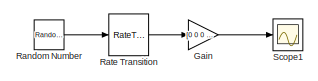
[diagram: root canvas - part 1/2, top center region]
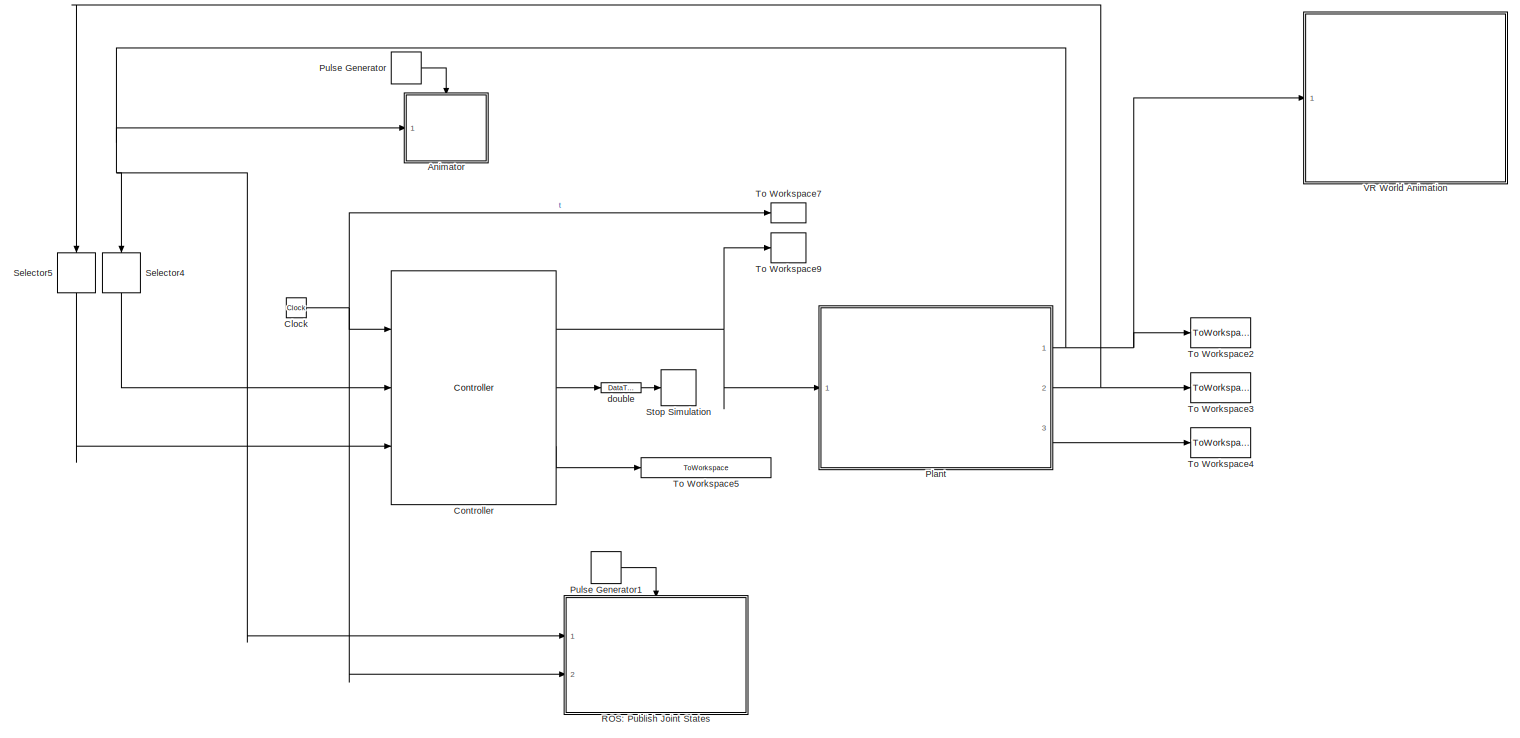
[diagram: root canvas - part 2/2, most of the canvas]
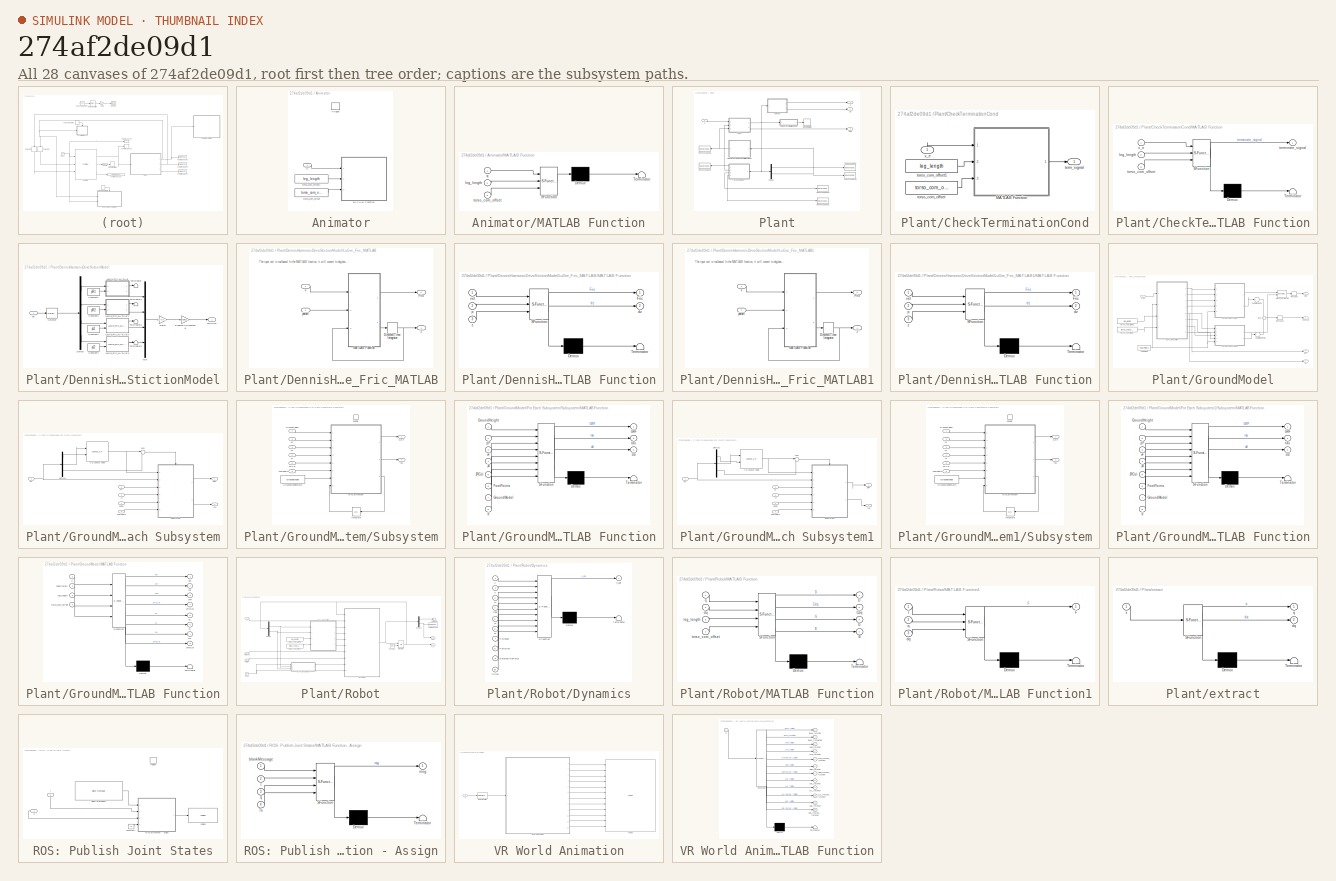
[diagram: thumbnail index - all 28 canvases of the model, root first then tree order]
MODEL slx_274af2de09d1
KIND model
CONFIG AbsTol = auto
CONFIG FixedStep = 0.0005
CONFIG MaxStep = auto
CONFIG MinStep = auto
CONFIG RelTol = 1e-3
CONFIG SampleTimeConstraint = Unconstrained
CONFIG Solver = ode1
CONFIG SolverMode = MultiTasking
CONFIG SolverName = ode1
CONFIG StartTime = 0.0
CONFIG StopFcn = structifySimData\nConstructLog_Sim
CONFIG StopTime = 20
BLOCK [SubSystem] Animator
  Commented = on
  Ports = [1, 0, 0, 1]
  RequestExecContextInheritance = off
  Variant = off
BLOCK [SubSystem] Animator/MATLAB Function
  ErrorFcn = Stateflow.Translate.translate
  PermitHierarchicalResolution = ExplicitOnly
  Ports = [3]
  RequestExecContextInheritance = off
  SFBlockType = MATLAB Function
  TreatAsAtomicUnit = on
  Variant = off
BLOCK [Demux] Animator/MATLAB Function/ Demux 
  Outputs = 1
  Ports = [1, 1]
BLOCK [S-Function] Animator/MATLAB Function/ SFunction 
  EnableBusSupport = on
  FunctionName = sf_sfun
  PortCounts = [3 1]
  Ports = [3, 1]
  SFunctionDeploymentMode = off
  Tag = Stateflow S-Function Controller_Sim 8
BLOCK [Terminator] Animator/MATLAB Function/ Terminator 
BLOCK [Inport] Animator/MATLAB Function/leg_length
  IconDisplay = Port number
  Port = 2
BLOCK [Inport] Animator/MATLAB Function/q
  IconDisplay = Port number
BLOCK [Inport] Animator/MATLAB Function/torso_com_offset
  IconDisplay = Port number
  Port = 3
BLOCK [TriggerPort] Animator/Trigger
  PortDimensions = 1
  Ports = []
  StatesWhenEnabling = held
  VariantControl = Variant
BLOCK [Inport] Animator/q
  IconDisplay = Port number
BLOCK [Constant] Animator/torso_com_offset
  Value = torso_com_offset
BLOCK [Constant] Animator/torso_com_offset1
  Value = leg_length
BLOCK [Clock] Clock
BLOCK [Reference] Controller  REF=ControllerLibrary/Controller
  Ports = [3, 3]
  SourceBlock = ControllerLibrary/Controller
  SourceType = SubSystem
BLOCK [Gain] Gain
  Gain = [0 0 0 0 0 0 0 0 0 1 0 0 1]
  OutDataTypeStr = Inherit: Inherit via internal rule
  ParamDataTypeStr = Inherit: Inherit via internal rule
  SaturateOnIntegerOverflow = off
BLOCK [SubSystem] Plant
  Ports = [1, 3]
  RequestExecContextInheritance = off
  Variant = off
BLOCK [SubSystem] Plant/CheckTerminationCond
  Ports = [1, 1]
  RequestExecContextInheritance = off
  Variant = off
BLOCK [SubSystem] Plant/CheckTerminationCond/MATLAB Function
  ErrorFcn = Stateflow.Translate.translate
  PermitHierarchicalResolution = ExplicitOnly
  Ports = [3, 1]
  RequestExecContextInheritance = off
  SFBlockType = MATLAB Function
  TreatAsAtomicUnit = on
  Variant = off
BLOCK [Demux] Plant/CheckTerminationCond/MATLAB Function/ Demux 
  Outputs = 1
  Ports = [1, 1]
BLOCK [S-Function] Plant/CheckTerminationCond/MATLAB Function/ SFunction 
  EnableBusSupport = on
  FunctionName = sf_sfun
  PortCounts = [3 2]
  Ports = [3, 2]
  SFunctionDeploymentMode = off
  Tag = Stateflow S-Function Controller_Sim 11
BLOCK [Terminator] Plant/CheckTerminationCond/MATLAB Function/ Terminator 
BLOCK [Inport] Plant/CheckTerminationCond/MATLAB Function/leg_length
  IconDisplay = Port number
  Port = 2
BLOCK [Outport] Plant/CheckTerminationCond/MATLAB Function/terminate_signal
  IconDisplay = Port number
BLOCK [Inport] Plant/CheckTerminationCond/MATLAB Function/torso_com_offset
  IconDisplay = Port number
  Port = 3
BLOCK [Inport] Plant/CheckTerminationCond/MATLAB Function/x_e
  IconDisplay = Port number
BLOCK [Outport] Plant/CheckTerminationCond/term_signal
  IconDisplay = Port number
BLOCK [Constant] Plant/CheckTerminationCond/torso_com_offset
  Value = torso_com_offset
BLOCK [Constant] Plant/CheckTerminationCond/torso_com_offset1
  Value = leg_length
BLOCK [Inport] Plant/CheckTerminationCond/x_e
  IconDisplay = Port number
BLOCK [Demux] Plant/Demux
  DisplayOption = bar
  Outputs = [16 16]
  Ports = [1, 2]
BLOCK [SubSystem] Plant/DennisHarmonicDriveStictionModel
  Ports = [1, 1]
  RequestExecContextInheritance = off
  Variant = off
BLOCK [Constant] Plant/DennisHarmonicDriveStictionModel/Constant1
  Value = pR1
BLOCK [Constant] Plant/DennisHarmonicDriveStictionModel/Constant2
  Value = pR2
BLOCK [Constant] Plant/DennisHarmonicDriveStictionModel/Constant3
  Value = pL1
BLOCK [Constant] Plant/DennisHarmonicDriveStictionModel/Constant4
  Value = pL2
BLOCK [Demux] Plant/DennisHarmonicDriveStictionModel/Demux
  DisplayOption = bar
  Ports = [1, 4]
BLOCK [Gain] Plant/DennisHarmonicDriveStictionModel/EnableStictionModel
  Gain = EnableStictionModel
  OutDataTypeStr = Inherit: Inherit via internal rule
  ParamDataTypeStr = Inherit: Inherit via internal rule
  SaturateOnIntegerOverflow = off
BLOCK [Outport] Plant/DennisHarmonicDriveStictionModel/Fstiction
  IconDisplay = Port number
BLOCK [Gain] Plant/DennisHarmonicDriveStictionModel/Gain1
  Gain = [1 0 0 0; 0 1 0 0; 0 0 0 0; 0 0 1 0; 0 0 0 1; 0 0 0 0]
  Multiplication = Matrix(K*u)
  OutDataTypeStr = Inherit: Inherit via internal rule
  ParamDataTypeStr = Inherit: Inherit via internal rule
  SaturateOnIntegerOverflow = off
BLOCK [SubSystem] Plant/DennisHarmonicDriveStictionModel/LuGre_Fric_MATLAB
  AncestorBlock = Friction_Compensator_Lib/LuGre_Fric_MATLAB
  Ports = [2, 2]
  RequestExecContextInheritance = off
  Variant = off
BLOCK [DiscreteIntegrator] Plant/DennisHarmonicDriveStictionModel/LuGre_Fric_MATLAB/Discrete-Time Integrator
  ICPrevOutput = DiscIntNeverNeededParam
  ICPrevScaledInput = DiscIntNeverNeededParam
  InitialConditionSetting = State (most efficient)
  Ports = [1, 1]
  SampleTime = -1
BLOCK [Outport] Plant/DennisHarmonicDriveStictionModel/LuGre_Fric_MATLAB/Fric
  IconDisplay = Port number
  Port = 2
BLOCK [SubSystem] Plant/DennisHarmonicDriveStictionModel/LuGre_Fric_MATLAB/MATLAB Function
  ErrorFcn = Stateflow.Translate.translate
  PermitHierarchicalResolution = ExplicitOnly
  Ports = [3, 2]
  RequestExecContextInheritance = off
  SFBlockType = MATLAB Function
  TreatAsAtomicUnit = on
  Variant = off
BLOCK [Demux] Plant/DennisHarmonicDriveStictionModel/LuGre_Fric_MATLAB/MATLAB Function/ Demux 
  Outputs = 1
  Ports = [1, 1]
BLOCK [S-Function] Plant/DennisHarmonicDriveStictionModel/LuGre_Fric_MATLAB/MATLAB Function/ SFunction 
  EnableBusSupport = on
  FunctionName = sf_sfun
  PortCounts = [3 3]
  Ports = [3, 3]
  SFunctionDeploymentMode = off
  Tag = Stateflow S-Function Controller_Sim 14
BLOCK [Terminator] Plant/DennisHarmonicDriveStictionModel/LuGre_Fric_MATLAB/MATLAB Function/ Terminator 
BLOCK [Outport] Plant/DennisHarmonicDriveStictionModel/LuGre_Fric_MATLAB/MATLAB Function/Fric
  IconDisplay = Port number
BLOCK [Outport] Plant/DennisHarmonicDriveStictionModel/LuGre_Fric_MATLAB/MATLAB Function/dz
  IconDisplay = Port number
  Port = 2
BLOCK [Inport] Plant/DennisHarmonicDriveStictionModel/LuGre_Fric_MATLAB/MATLAB Function/p
  IconDisplay = Port number
  Port = 2
BLOCK [Inport] Plant/DennisHarmonicDriveStictionModel/LuGre_Fric_MATLAB/MATLAB Function/vel
  IconDisplay = Port number
BLOCK [Inport] Plant/DennisHarmonicDriveStictionModel/LuGre_Fric_MATLAB/MATLAB Function/z
  IconDisplay = Port number
  Port = 3
BLOCK [Inport] Plant/DennisHarmonicDriveStictionModel/LuGre_Fric_MATLAB/param
  IconDisplay = Port number
  Port = 2
BLOCK [Inport] Plant/DennisHarmonicDriveStictionModel/LuGre_Fric_MATLAB/v
  IconDisplay = Port number
BLOCK [Outport] Plant/DennisHarmonicDriveStictionModel/LuGre_Fric_MATLAB/z
  IconDisplay = Port number
BLOCK [SubSystem] Plant/DennisHarmonicDriveStictionModel/LuGre_Fric_MATLAB1
  AncestorBlock = Friction_Compensator_Lib/LuGre_Fric_MATLAB
  Ports = [2, 2]
  RequestExecContextInheritance = off
  Variant = off
BLOCK [DiscreteIntegrator] Plant/DennisHarmonicDriveStictionModel/LuGre_Fric_MATLAB1/Discrete-Time Integrator
  ICPrevOutput = DiscIntNeverNeededParam
  ICPrevScaledInput = DiscIntNeverNeededParam
  InitialConditionSetting = State (most efficient)
  Ports = [1, 1]
  SampleTime = -1
BLOCK [Outport] Plant/DennisHarmonicDriveStictionModel/LuGre_Fric_MATLAB1/Fric
  IconDisplay = Port number
  Port = 2
BLOCK [SubSystem] Plant/DennisHarmonicDriveStictionModel/LuGre_Fric_MATLAB1/MATLAB Function
  ErrorFcn = Stateflow.Translate.translate
  PermitHierarchicalResolution = ExplicitOnly
  Ports = [3, 2]
  RequestExecContextInheritance = off
  SFBlockType = MATLAB Function
  TreatAsAtomicUnit = on
  Variant = off
BLOCK [Demux] Plant/DennisHarmonicDriveStictionModel/LuGre_Fric_MATLAB1/MATLAB Function/ Demux 
  Outputs = 1
  Ports = [1, 1]
BLOCK [S-Function] Plant/DennisHarmonicDriveStictionModel/LuGre_Fric_MATLAB1/MATLAB Function/ SFunction 
  EnableBusSupport = on
  FunctionName = sf_sfun
  PortCounts = [3 3]
  Ports = [3, 3]
  SFunctionDeploymentMode = off
  Tag = Stateflow S-Function Controller_Sim 15
BLOCK [Terminator] Plant/DennisHarmonicDriveStictionModel/LuGre_Fric_MATLAB1/MATLAB Function/ Terminator 
BLOCK [Outport] Plant/DennisHarmonicDriveStictionModel/LuGre_Fric_MATLAB1/MATLAB Function/Fric
  IconDisplay = Port number
BLOCK [Outport] Plant/DennisHarmonicDriveStictionModel/LuGre_Fric_MATLAB1/MATLAB Function/dz
  IconDisplay = Port number
  Port = 2
BLOCK [Inport] Plant/DennisHarmonicDriveStictionModel/LuGre_Fric_MATLAB1/MATLAB Function/p
  IconDisplay = Port number
  Port = 2
BLOCK [Inport] Plant/DennisHarmonicDriveStictionModel/LuGre_Fric_MATLAB1/MATLAB Function/vel
  IconDisplay = Port number
BLOCK [Inport] Plant/DennisHarmonicDriveStictionModel/LuGre_Fric_MATLAB1/MATLAB Function/z
  IconDisplay = Port number
  Port = 3
BLOCK [Inport] Plant/DennisHarmonicDriveStictionModel/LuGre_Fric_MATLAB1/param
  IconDisplay = Port number
  Port = 2
BLOCK [Inport] Plant/DennisHarmonicDriveStictionModel/LuGre_Fric_MATLAB1/v
  IconDisplay = Port number
BLOCK [Outport] Plant/DennisHarmonicDriveStictionModel/LuGre_Fric_MATLAB1/z
  IconDisplay = Port number
BLOCK [Reference] Plant/DennisHarmonicDriveStictionModel/LuGre_Fric_MATLAB2  REF=Friction_Compensator_Lib/LuGre_Fric_MATLAB
  Ports = [2, 2]
  SourceBlock = Friction_Compensator_Lib/LuGre_Fric_MATLAB
  SourceType = SubSystem
BLOCK [Reference] Plant/DennisHarmonicDriveStictionModel/LuGre_Fric_MATLAB3  REF=Friction_Compensator_Lib/LuGre_Fric_MATLAB
  Ports = [2, 2]
  SourceBlock = Friction_Compensator_Lib/LuGre_Fric_MATLAB
  SourceType = SubSystem
BLOCK [Mux] Plant/DennisHarmonicDriveStictionModel/Mux
  DisplayOption = bar
  Ports = [4, 1]
BLOCK [Selector] Plant/DennisHarmonicDriveStictionModel/Selector
  IndexOptions = Index vector (dialog)
  Indices = [11 12 14 15]
  InputPortWidth = 16
  OutputSizes = 1
  Ports = [1, 1]
BLOCK [Terminator] Plant/DennisHarmonicDriveStictionModel/Terminator
BLOCK [Terminator] Plant/DennisHarmonicDriveStictionModel/Terminator1
BLOCK [Terminator] Plant/DennisHarmonicDriveStictionModel/Terminator2
BLOCK [Terminator] Plant/DennisHarmonicDriveStictionModel/Terminator3
BLOCK [Inport] Plant/DennisHarmonicDriveStictionModel/dq
  IconDisplay = Port number
BLOCK [SubSystem] Plant/GroundModel
  Ports = [1, 4]
  RequestExecContextInheritance = off
  Variant = off
BLOCK [Outport] Plant/GroundModel/FGround
  IconDisplay = Port number
  Port = 2
BLOCK [Constant] Plant/GroundModel/FootPoints
  Value = FootPoints
BLOCK [SubSystem] Plant/GroundModel/For Each Subsystem
  Ports = [5, 2]
  RequestExecContextInheritance = off
  TreatAsAtomicUnit = on
  Variant = off
BLOCK [Lookup_n-D] Plant/GroundModel/For Each Subsystem/2-D Lookup Table
  BreakpointsForDimension1 = xLine
  BreakpointsForDimension2 = yLine
  InternalRulePriority = Speed
  Ports = [2, 1]
  RndMeth = Simplest
  Table = Z
BLOCK [Demux] Plant/GroundModel/For Each Subsystem/Demux1
  DisplayOption = bar
  Outputs = 3
  Ports = [1, 3]
BLOCK [Inport] Plant/GroundModel/For Each Subsystem/FootPoints
  IconDisplay = Port number
  Port = 5
BLOCK [Outport] Plant/GroundModel/For Each Subsystem/GRF
  IconDisplay = Port number
BLOCK [Inport] Plant/GroundModel/For Each Subsystem/J4
  IconDisplay = Port number
  Port = 3
BLOCK [Inport] Plant/GroundModel/For Each Subsystem/JRCol
  IconDisplay = Port number
  Port = 4
BLOCK [SubSystem] Plant/GroundModel/For Each Subsystem/Subsystem
  Ports = [6, 2, 1]
  RequestExecContextInheritance = off
  Variant = off
BLOCK [EnablePort] Plant/GroundModel/For Each Subsystem/Subsystem/Enable
  Ports = []
  StatesWhenEnabling = reset
BLOCK [Inport] Plant/GroundModel/For Each Subsystem/Subsystem/FootPoints
  IconDisplay = Port number
  Port = 6
BLOCK [Outport] Plant/GroundModel/For Each Subsystem/Subsystem/GRF
  IconDisplay = Port number
  InitialOutput = [0;0;0]
  OutputWhenDisabled = reset
BLOCK [Inport] Plant/GroundModel/For Each Subsystem/Subsystem/GroundHeight
  IconDisplay = Port number
BLOCK [Constant] Plant/GroundModel/For Each Subsystem/Subsystem/GroundModelParams
  OutDataTypeStr = Bus: GroundModelParamsBus
  Value = GroundModel
BLOCK [Integrator] Plant/GroundModel/For Each Subsystem/Subsystem/Integrator
  InitialCondition = [0; 0]
  Ports = [1, 1]
BLOCK [Inport] Plant/GroundModel/For Each Subsystem/Subsystem/J4
  IconDisplay = Port number
  Port = 4
BLOCK [Inport] Plant/GroundModel/For Each Subsystem/Subsystem/JRCol
  IconDisplay = Port number
  Port = 5
BLOCK [SubSystem] Plant/GroundModel/For Each Subsystem/Subsystem/MATLAB Function
  ErrorFcn = Stateflow.Translate.translate
  PermitHierarchicalResolution = ExplicitOnly
  Ports = [8, 3]
  RequestExecContextInheritance = off
  SFBlockType = MATLAB Function
  TreatAsAtomicUnit = on
  Variant = off
BLOCK [Demux] Plant/GroundModel/For Each Subsystem/Subsystem/MATLAB Function/ Demux 
  Outputs = 1
  Ports = [1, 1]
BLOCK [S-Function] Plant/GroundModel/For Each Subsystem/Subsystem/MATLAB Function/ SFunction 
  EnableBusSupport = on
  FunctionName = sf_sfun
  PortCounts = [8 4]
  Ports = [8, 4]
  SFunctionDeploymentMode = off
  Tag = Stateflow S-Function Controller_Sim 3
BLOCK [Terminator] Plant/GroundModel/For Each Subsystem/Subsystem/MATLAB Function/ Terminator 
BLOCK [Inport] Plant/GroundModel/For Each Subsystem/Subsystem/MATLAB Function/FootPoints
  IconDisplay = Port number
  Port = 6
BLOCK [Outport] Plant/GroundModel/For Each Subsystem/Subsystem/MATLAB Function/GRF
  IconDisplay = Port number
BLOCK [Inport] Plant/GroundModel/For Each Subsystem/Subsystem/MATLAB Function/GroundHeight
  IconDisplay = Port number
BLOCK [Inport] Plant/GroundModel/For Each Subsystem/Subsystem/MATLAB Function/GroundModel
  IconDisplay = Port number
  Port = 7
BLOCK [Inport] Plant/GroundModel/For Each Subsystem/Subsystem/MATLAB Function/J4
  IconDisplay = Port number
  Port = 4
BLOCK [Inport] Plant/GroundModel/For Each Subsystem/Subsystem/MATLAB Function/JRCol
  IconDisplay = Port number
  Port = 5
BLOCK [Inport] Plant/GroundModel/For Each Subsystem/Subsystem/MATLAB Function/d
  IconDisplay = Port number
  Port = 8
BLOCK [Outport] Plant/GroundModel/For Each Subsystem/Subsystem/MATLAB Function/dd
  IconDisplay = Port number
  Port = 3
BLOCK [Inport] Plant/GroundModel/For Each Subsystem/Subsystem/MATLAB Function/pF
  IconDisplay = Port number
  Port = 2
BLOCK [Outport] Plant/GroundModel/For Each Subsystem/Subsystem/MATLAB Function/tau
  IconDisplay = Port number
  Port = 2
BLOCK [Inport] Plant/GroundModel/For Each Subsystem/Subsystem/MATLAB Function/vF
  IconDisplay = Port number
  Port = 3
BLOCK [Inport] Plant/GroundModel/For Each Subsystem/Subsystem/pF
  IconDisplay = Port number
  Port = 2
BLOCK [Outport] Plant/GroundModel/For Each Subsystem/Subsystem/tau
  IconDisplay = Port number
  InitialOutput = zeros(16,1)
  OutputWhenDisabled = reset
  Port = 2
BLOCK [Inport] Plant/GroundModel/For Each Subsystem/Subsystem/vF
  IconDisplay = Port number
  Port = 3
BLOCK [Sum] Plant/GroundModel/For Each Subsystem/Sum
  IconShape = round
  InputSameDT = off
  Inputs = |+-
  OutDataTypeStr = Inherit: Inherit via internal rule
  Ports = [2, 1]
  SaturateOnIntegerOverflow = off
BLOCK [Inport] Plant/GroundModel/For Each Subsystem/pF
  IconDisplay = Port number
BLOCK [Outport] Plant/GroundModel/For Each Subsystem/tau
  IconDisplay = Port number
  Port = 2
BLOCK [Inport] Plant/GroundModel/For Each Subsystem/vF
  IconDisplay = Port number
  Port = 2
BLOCK [SubSystem] Plant/GroundModel/For Each Subsystem1
  Ports = [5, 2]
  RequestExecContextInheritance = off
  TreatAsAtomicUnit = on
  Variant = off
BLOCK [Lookup_n-D] Plant/GroundModel/For Each Subsystem1/2-D Lookup Table
  BreakpointsForDimension1 = xLine
  BreakpointsForDimension2 = yLine
  InternalRulePriority = Speed
  Ports = [2, 1]
  RndMeth = Simplest
  Table = Z
BLOCK [Demux] Plant/GroundModel/For Each Subsystem1/Demux1
  DisplayOption = bar
  Outputs = 3
  Ports = [1, 3]
BLOCK [Inport] Plant/GroundModel/For Each Subsystem1/FootPoints
  IconDisplay = Port number
  Port = 5
BLOCK [Outport] Plant/GroundModel/For Each Subsystem1/GRF
  IconDisplay = Port number
BLOCK [Inport] Plant/GroundModel/For Each Subsystem1/J4
  IconDisplay = Port number
  Port = 3
BLOCK [Inport] Plant/GroundModel/For Each Subsystem1/JRCol
  IconDisplay = Port number
  Port = 4
BLOCK [SubSystem] Plant/GroundModel/For Each Subsystem1/Subsystem
  Ports = [6, 2, 1]
  RequestExecContextInheritance = off
  Variant = off
BLOCK [EnablePort] Plant/GroundModel/For Each Subsystem1/Subsystem/Enable
  Ports = []
  StatesWhenEnabling = reset
BLOCK [Inport] Plant/GroundModel/For Each Subsystem1/Subsystem/FootPoints
  IconDisplay = Port number
  Port = 6
BLOCK [Outport] Plant/GroundModel/For Each Subsystem1/Subsystem/GRF
  IconDisplay = Port number
  InitialOutput = [0;0;0]
  OutputWhenDisabled = reset
BLOCK [Inport] Plant/GroundModel/For Each Subsystem1/Subsystem/GroundHeight
  IconDisplay = Port number
BLOCK [Constant] Plant/GroundModel/For Each Subsystem1/Subsystem/GroundModelParams
  OutDataTypeStr = Bus: GroundModelParamsBus
  Value = GroundModel
BLOCK [Integrator] Plant/GroundModel/For Each Subsystem1/Subsystem/Integrator
  InitialCondition = [0; 0]
  Ports = [1, 1]
BLOCK [Inport] Plant/GroundModel/For Each Subsystem1/Subsystem/J4
  IconDisplay = Port number
  Port = 4
BLOCK [Inport] Plant/GroundModel/For Each Subsystem1/Subsystem/JRCol
  IconDisplay = Port number
  Port = 5
BLOCK [SubSystem] Plant/GroundModel/For Each Subsystem1/Subsystem/MATLAB Function
  ErrorFcn = Stateflow.Translate.translate
  PermitHierarchicalResolution = ExplicitOnly
  Ports = [8, 3]
  RequestExecContextInheritance = off
  SFBlockType = MATLAB Function
  TreatAsAtomicUnit = on
  Variant = off
BLOCK [Demux] Plant/GroundModel/For Each Subsystem1/Subsystem/MATLAB Function/ Demux 
  Outputs = 1
  Ports = [1, 1]
BLOCK [S-Function] Plant/GroundModel/For Each Subsystem1/Subsystem/MATLAB Function/ SFunction 
  EnableBusSupport = on
  FunctionName = sf_sfun
  PortCounts = [8 4]
  Ports = [8, 4]
  SFunctionDeploymentMode = off
  Tag = Stateflow S-Function Controller_Sim 1
BLOCK [Terminator] Plant/GroundModel/For Each Subsystem1/Subsystem/MATLAB Function/ Terminator 
BLOCK [Inport] Plant/GroundModel/For Each Subsystem1/Subsystem/MATLAB Function/FootPoints
  IconDisplay = Port number
  Port = 6
BLOCK [Outport] Plant/GroundModel/For Each Subsystem1/Subsystem/MATLAB Function/GRF
  IconDisplay = Port number
BLOCK [Inport] Plant/GroundModel/For Each Subsystem1/Subsystem/MATLAB Function/GroundHeight
  IconDisplay = Port number
BLOCK [Inport] Plant/GroundModel/For Each Subsystem1/Subsystem/MATLAB Function/GroundModel
  IconDisplay = Port number
  Port = 7
BLOCK [Inport] Plant/GroundModel/For Each Subsystem1/Subsystem/MATLAB Function/J4
  IconDisplay = Port number
  Port = 4
BLOCK [Inport] Plant/GroundModel/For Each Subsystem1/Subsystem/MATLAB Function/JRCol
  IconDisplay = Port number
  Port = 5
BLOCK [Inport] Plant/GroundModel/For Each Subsystem1/Subsystem/MATLAB Function/d
  IconDisplay = Port number
  Port = 8
BLOCK [Outport] Plant/GroundModel/For Each Subsystem1/Subsystem/MATLAB Function/dd
  IconDisplay = Port number
  Port = 3
BLOCK [Inport] Plant/GroundModel/For Each Subsystem1/Subsystem/MATLAB Function/pF
  IconDisplay = Port number
  Port = 2
BLOCK [Outport] Plant/GroundModel/For Each Subsystem1/Subsystem/MATLAB Function/tau
  IconDisplay = Port number
  Port = 2
BLOCK [Inport] Plant/GroundModel/For Each Subsystem1/Subsystem/MATLAB Function/vF
  IconDisplay = Port number
  Port = 3
BLOCK [Inport] Plant/GroundModel/For Each Subsystem1/Subsystem/pF
  IconDisplay = Port number
  Port = 2
BLOCK [Outport] Plant/GroundModel/For Each Subsystem1/Subsystem/tau
  IconDisplay = Port number
  InitialOutput = zeros(16,1)
  OutputWhenDisabled = reset
  Port = 2
BLOCK [Inport] Plant/GroundModel/For Each Subsystem1/Subsystem/vF
  IconDisplay = Port number
  Port = 3
BLOCK [Sum] Plant/GroundModel/For Each Subsystem1/Sum
  IconShape = round
  InputSameDT = off
  Inputs = |+-
  OutDataTypeStr = Inherit: Inherit via internal rule
  Ports = [2, 1]
  SaturateOnIntegerOverflow = off
BLOCK [Inport] Plant/GroundModel/For Each Subsystem1/pF
  IconDisplay = Port number
BLOCK [Outport] Plant/GroundModel/For Each Subsystem1/tau
  IconDisplay = Port number
  Port = 2
BLOCK [Inport] Plant/GroundModel/For Each Subsystem1/vF
  IconDisplay = Port number
  Port = 2
BLOCK [Outport] Plant/GroundModel/GRF
  IconDisplay = Port number
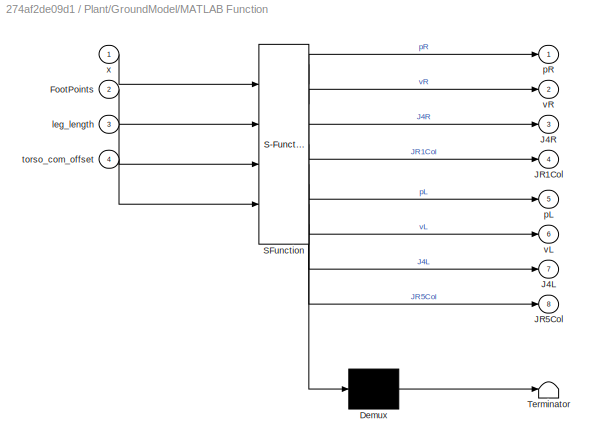
BLOCK [SubSystem] Plant/GroundModel/MATLAB Function
  ErrorFcn = Stateflow.Translate.translate
  PermitHierarchicalResolution = ExplicitOnly
  Ports = [4, 8]
  RequestExecContextInheritance = off
  SFBlockType = MATLAB Function
  TreatAsAtomicUnit = on
  Variant = off
BLOCK [Demux] Plant/GroundModel/MATLAB Function/ Demux 
  Outputs = 1
  Ports = [1, 1]
BLOCK [S-Function] Plant/GroundModel/MATLAB Function/ SFunction 
  EnableBusSupport = on
  FunctionName = sf_sfun
  PortCounts = [4 9]
  Ports = [4, 9]
  SFunctionDeploymentMode = off
  Tag = Stateflow S-Function Controller_Sim 9
BLOCK [Terminator] Plant/GroundModel/MATLAB Function/ Terminator 
BLOCK [Inport] Plant/GroundModel/MATLAB Function/FootPoints
  IconDisplay = Port number
  Port = 2
BLOCK [Outport] Plant/GroundModel/MATLAB Function/J4L
  IconDisplay = Port number
  Port = 7
BLOCK [Outport] Plant/GroundModel/MATLAB Function/J4R
  IconDisplay = Port number
  Port = 3
BLOCK [Outport] Plant/GroundModel/MATLAB Function/JR1Col
  IconDisplay = Port number
  Port = 4
BLOCK [Outport] Plant/GroundModel/MATLAB Function/JR5Col
  IconDisplay = Port number
  Port = 8
BLOCK [Inport] Plant/GroundModel/MATLAB Function/leg_length
  IconDisplay = Port number
  Port = 3
BLOCK [Outport] Plant/GroundModel/MATLAB Function/pL
  IconDisplay = Port number
  Port = 5
BLOCK [Outport] Plant/GroundModel/MATLAB Function/pR
  IconDisplay = Port number
BLOCK [Inport] Plant/GroundModel/MATLAB Function/torso_com_offset
  IconDisplay = Port number
  Port = 4
BLOCK [Outport] Plant/GroundModel/MATLAB Function/vL
  IconDisplay = Port number
  Port = 6
BLOCK [Outport] Plant/GroundModel/MATLAB Function/vR
  IconDisplay = Port number
  Port = 2
BLOCK [Inport] Plant/GroundModel/MATLAB Function/x
  IconDisplay = Port number
BLOCK [Concatenate] Plant/GroundModel/Matrix Concatenate
  Mode = Multidimensional array
  Ports = [2, 1]
BLOCK [Reshape] Plant/GroundModel/Reshape
  Ports = [1, 1]
BLOCK [Reshape] Plant/GroundModel/Reshape1
  Ports = [1, 1]
BLOCK [Sum] Plant/GroundModel/Sum
  IconShape = round
  InputSameDT = off
  Inputs = +|+
  OutDataTypeStr = Inherit: Inherit via internal rule
  Ports = [2, 1]
  SaturateOnIntegerOverflow = off
BLOCK [Sum] Plant/GroundModel/Sum of Elements
  CollapseDim = 2
  CollapseMode = Specified dimension
  Commented = through
  InputSameDT = off
  Inputs = +
  OutDataTypeStr = Inherit: Inherit via internal rule
  Ports = [1, 1]
  SaturateOnIntegerOverflow = off
BLOCK [Sum] Plant/GroundModel/Sum of Elements1
  CollapseDim = 2
  CollapseMode = Specified dimension
  Commented = through
  InputSameDT = off
  Inputs = +
  OutDataTypeStr = Inherit: Inherit via internal rule
  Ports = [1, 1]
  SaturateOnIntegerOverflow = off
BLOCK [Outport] Plant/GroundModel/pL
  IconDisplay = Port number
  Port = 4
BLOCK [Outport] Plant/GroundModel/pR
  IconDisplay = Port number
  Port = 3
BLOCK [Constant] Plant/GroundModel/torso_com_offset
  Value = torso_com_offset
BLOCK [Constant] Plant/GroundModel/torso_com_offset1
  Value = leg_length
BLOCK [Inport] Plant/GroundModel/x_e
  IconDisplay = Port number
BLOCK [SubSystem] Plant/Robot
  Ports = [3, 2]
  RequestExecContextInheritance = off
  Variant = off
BLOCK [Clock] Plant/Robot/Clock
BLOCK [Constant] Plant/Robot/Constant
  Value = xinit
BLOCK [Demux] Plant/Robot/Demux
  DisplayOption = bar
  Outputs = [16 16]
  Ports = [1, 2]
BLOCK [Demux] Plant/Robot/Demux1
  DisplayOption = bar
  Outputs = [16 16]
  Ports = [1, 2]
BLOCK [SubSystem] Plant/Robot/Dynamics
  ErrorFcn = Stateflow.Translate.translate
  PermitHierarchicalResolution = ExplicitOnly
  Ports = [10, 1]
  RequestExecContextInheritance = off
  SFBlockType = MATLAB Function
  TreatAsAtomicUnit = on
  Variant = off
BLOCK [Demux] Plant/Robot/Dynamics/ Demux 
  Outputs = 1
  Ports = [1, 1]
BLOCK [S-Function] Plant/Robot/Dynamics/ SFunction 
  EnableBusSupport = on
  FunctionName = sf_sfun
  Parameters = spring_k,spring_zeta
  PortCounts = [10 2]
  Ports = [10, 2]
  SFunctionDeploymentMode = off
  Tag = Stateflow S-Function Controller_Sim 2
BLOCK [Terminator] Plant/Robot/Dynamics/ Terminator 
BLOCK [Inport] Plant/Robot/Dynamics/B
  IconDisplay = Port number
  Port = 6
BLOCK [Inport] Plant/Robot/Dynamics/Cdq
  IconDisplay = Port number
  Port = 4
BLOCK [Inport] Plant/Robot/Dynamics/D
  IconDisplay = Port number
  Port = 3
BLOCK [Inport] Plant/Robot/Dynamics/ExternalHipForce
  IconDisplay = Port number
  Port = 9
BLOCK [Inport] Plant/Robot/Dynamics/FGround
  IconDisplay = Port number
  Port = 7
BLOCK [Inport] Plant/Robot/Dynamics/Fstiction
  IconDisplay = Port number
  Port = 8
BLOCK [Inport] Plant/Robot/Dynamics/G
  IconDisplay = Port number
  Port = 5
BLOCK [Inport] Plant/Robot/Dynamics/Ttime
  IconDisplay = Port number
  Port = 10
BLOCK [Inport] Plant/Robot/Dynamics/u
  IconDisplay = Port number
  Port = 2
BLOCK [Inport] Plant/Robot/Dynamics/x
  IconDisplay = Port number
BLOCK [Outport] Plant/Robot/Dynamics/x_dot
  IconDisplay = Port number
BLOCK [Inport] Plant/Robot/FGround
  IconDisplay = Port number
  Port = 2
BLOCK [Inport] Plant/Robot/FStiction
  IconDisplay = Port number
  Port = 3
BLOCK [Integrator] Plant/Robot/Integrator
  InitialCondition = str2num(get(gd.edit1,'string'))
  InitialConditionSource = external
  Ports = [2, 1]
BLOCK [SubSystem] Plant/Robot/MATLAB Function
  ErrorFcn = Stateflow.Translate.translate
  PermitHierarchicalResolution = ExplicitOnly
  Ports = [4, 4]
  RequestExecContextInheritance = off
  SFBlockType = MATLAB Function
  TreatAsAtomicUnit = on
  Variant = off
BLOCK [Demux] Plant/Robot/MATLAB Function/ Demux 
  Outputs = 1
  Ports = [1, 1]
BLOCK [S-Function] Plant/Robot/MATLAB Function/ SFunction 
  EnableBusSupport = on
  FunctionName = sf_sfun
  PortCounts = [4 5]
  Ports = [4, 5]
  SFunctionDeploymentMode = off
  Tag = Stateflow S-Function Controller_Sim 5
BLOCK [Terminator] Plant/Robot/MATLAB Function/ Terminator 
BLOCK [Outport] Plant/Robot/MATLAB Function/B
  IconDisplay = Port number
  Port = 4
BLOCK [Outport] Plant/Robot/MATLAB Function/Cdq
  IconDisplay = Port number
  Port = 2
BLOCK [Outport] Plant/Robot/MATLAB Function/D
  IconDisplay = Port number
BLOCK [Outport] Plant/Robot/MATLAB Function/G
  IconDisplay = Port number
  Port = 3
BLOCK [Inport] Plant/Robot/MATLAB Function/dq
  IconDisplay = Port number
  Port = 2
BLOCK [Inport] Plant/Robot/MATLAB Function/leg_length
  IconDisplay = Port number
  Port = 3
BLOCK [Inport] Plant/Robot/MATLAB Function/q
  IconDisplay = Port number
BLOCK [Inport] Plant/Robot/MATLAB Function/torso_com_offset
  IconDisplay = Port number
  Port = 4
BLOCK [SubSystem] Plant/Robot/MATLAB Function1
  ErrorFcn = Stateflow.Translate.translate
  PermitHierarchicalResolution = ExplicitOnly
  Ports = [3, 1]
  RequestExecContextInheritance = off
  SFBlockType = MATLAB Function
  TreatAsAtomicUnit = on
  Variant = off
BLOCK [Demux] Plant/Robot/MATLAB Function1/ Demux 
  Outputs = 1
  Ports = [1, 1]
BLOCK [S-Function] Plant/Robot/MATLAB Function1/ SFunction 
  EnableBusSupport = on
  FunctionName = sf_sfun
  PortCounts = [3 2]
  Ports = [3, 2]
  SFunctionDeploymentMode = off
  Tag = Stateflow S-Function Controller_Sim 6
BLOCK [Terminator] Plant/Robot/MATLAB Function1/ Terminator 
BLOCK [Outport] Plant/Robot/MATLAB Function1/F
  IconDisplay = Port number
BLOCK [Inport] Plant/Robot/MATLAB Function1/dq
  IconDisplay = Port number
  Port = 3
BLOCK [Inport] Plant/Robot/MATLAB Function1/q
  IconDisplay = Port number
  Port = 2
BLOCK [Inport] Plant/Robot/MATLAB Function1/t
  IconDisplay = Port number
BLOCK [Terminator] Plant/Robot/Terminator
BLOCK [ToWorkspace] Plant/Robot/To Workspace
  MaxDataPoints = inf
  Ports = [1]
  SampleTime = -1
  VariableName = ddq_out
BLOCK [Outport] Plant/Robot/ddq
  IconDisplay = Port number
  Port = 2
BLOCK [Constant] Plant/Robot/torso_com_offset
  Value = torso_com_offset
BLOCK [Constant] Plant/Robot/torso_com_offset1
  Value = leg_length
BLOCK [Inport] Plant/Robot/u
  IconDisplay = Port number
BLOCK [Outport] Plant/Robot/x_e
  IconDisplay = Port number
BLOCK [Stop] Plant/Stop Simulation
BLOCK [ToWorkspace] Plant/To Workspace
  MaxDataPoints = inf
  Ports = [1]
  SampleTime = -1
  VariableName = q_out
BLOCK [ToWorkspace] Plant/To Workspace1
  MaxDataPoints = inf
  Ports = [1]
  SampleTime = -1
  VariableName = dq_out
BLOCK [ToWorkspace] Plant/To Workspace2
  MaxDataPoints = inf
  Ports = [1]
  SampleTime = -1
  VariableName = pR_out
BLOCK [ToWorkspace] Plant/To Workspace3
  MaxDataPoints = inf
  Ports = [1]
  SampleTime = -1
  VariableName = pL_out
BLOCK [ToWorkspace] Plant/To Workspace4
  MaxDataPoints = inf
  Ports = [1]
  SampleTime = -1
  VariableName = grf_out
BLOCK [ToWorkspace] Plant/To Workspace5
  MaxDataPoints = inf
  Ports = [1]
  SampleTime = -1
  VariableName = Fstiction
BLOCK [Outport] Plant/ddq
  IconDisplay = Port number
  Port = 3
BLOCK [Outport] Plant/dq
  IconDisplay = Port number
  Port = 2
BLOCK [SubSystem] Plant/extract
  ErrorFcn = Stateflow.Translate.translate
  PermitHierarchicalResolution = ExplicitOnly
  Ports = [1, 2]
  RequestExecContextInheritance = off
  SFBlockType = MATLAB Function
  TreatAsAtomicUnit = on
  Variant = off
BLOCK [Demux] Plant/extract/ Demux 
  Outputs = 1
  Ports = [1, 1]
BLOCK [S-Function] Plant/extract/ SFunction 
  EnableBusSupport = on
  FunctionName = sf_sfun
  PortCounts = [1 3]
  Ports = [1, 3]
  SFunctionDeploymentMode = off
  Tag = Stateflow S-Function Controller_Sim 4
BLOCK [Terminator] Plant/extract/ Terminator 
BLOCK [Outport] Plant/extract/dq
  IconDisplay = Port number
  Port = 2
BLOCK [Outport] Plant/extract/q
  IconDisplay = Port number
BLOCK [Inport] Plant/extract/x
  IconDisplay = Port number
BLOCK [Outport] Plant/q
  IconDisplay = Port number
BLOCK [Inport] Plant/u
  IconDisplay = Port number
BLOCK [DiscretePulseGenerator] Pulse Generator
  Commented = on
  Period = .01
  Ports = [0, 1]
  PulseType = Time based
  PulseWidth = 5
BLOCK [DiscretePulseGenerator] Pulse Generator1
  Commented = on
  Period = .01
  Ports = [0, 1]
  PulseType = Time based
  PulseWidth = 5
BLOCK [SubSystem] ROS: Publish Joint States
  Commented = on
  Ports = [2, 0, 0, 1]
  RequestExecContextInheritance = off
  Variant = off
BLOCK [Reference] ROS: Publish Joint States/Blank Message1  REF=robotlib/Blank Message
  Ports = [0, 1]
  SourceBlock = robotlib/Blank Message
  SourceLibraryInfo = This block requires Robotics System Toolbox
  SourceType = ROS Blank Message
BLOCK [Constant] ROS: Publish Joint States/Constant7
  Value = Ts
BLOCK [SubSystem] ROS: Publish Joint States/MATLAB Function - Assign
  ErrorFcn = Stateflow.Translate.translate
  PermitHierarchicalResolution = ExplicitOnly
  Ports = [4, 1]
  RequestExecContextInheritance = off
  SFBlockType = MATLAB Function
  TreatAsAtomicUnit = on
  Variant = off
BLOCK [Demux] ROS: Publish Joint States/MATLAB Function - Assign/ Demux 
  Outputs = 1
  Ports = [1, 1]
BLOCK [S-Function] ROS: Publish Joint States/MATLAB Function - Assign/ SFunction 
  EnableBusSupport = on
  FunctionName = sf_sfun
  PortCounts = [4 2]
  Ports = [4, 2]
  SFunctionDeploymentMode = off
  Tag = Stateflow S-Function Controller_Sim 17
BLOCK [Terminator] ROS: Publish Joint States/MATLAB Function - Assign/ Terminator 
BLOCK [Inport] ROS: Publish Joint States/MATLAB Function - Assign/Ts
  IconDisplay = Port number
  Port = 4
BLOCK [Inport] ROS: Publish Joint States/MATLAB Function - Assign/blankMessage
  IconDisplay = Port number
BLOCK [Outport] ROS: Publish Joint States/MATLAB Function - Assign/msg
  IconDisplay = Port number
BLOCK [Inport] ROS: Publish Joint States/MATLAB Function - Assign/q
  IconDisplay = Port number
  Port = 3
BLOCK [Inport] ROS: Publish Joint States/MATLAB Function - Assign/t
  IconDisplay = Port number
  Port = 2
BLOCK [Reference] ROS: Publish Joint States/Publish  REF=robotlib/Publish
  Ports = [1]
  SourceBlock = robotlib/Publish
  SourceLibraryInfo = This block requires Robotics System Toolbox
  SourceType = ROS Publish
BLOCK [TriggerPort] ROS: Publish Joint States/Trigger
  PortDimensions = 1
  Ports = []
  StatesWhenEnabling = held
  VariantControl = Variant
BLOCK [Inport] ROS: Publish Joint States/q
  IconDisplay = Port number
BLOCK [Inport] ROS: Publish Joint States/t
  IconDisplay = Port number
  Port = 2
BLOCK [RandomNumber] Random Number
  SampleTime = Ts*100
  Variance = Ts*300
BLOCK [RateTransition] Rate Transition
  OutPortSampleTime = Ts
BLOCK [Scope] Scope1
  Ports = [1]
  ScopeSpecificationString = C++SS(StrPVP('Location','[188, 365, 512, 604]'),StrPVP('Open','off'),MxPVP('AxesTitles',24,'struct(''axes1'',''%<SignalLabel>'')'),StrPVP('ShowLegends','off'),StrPVP('ScrollMode','off'),StrPVP('LimitDataPoints','on'),StrPVP('DataFormat','Array'),StrPVP('Decimation','1'),StrPVP('BlockParamSampleInput','off'),StrPVP('SaveName','ScopeData1'))
BLOCK [Selector] Selector4
  IndexOptions = Index vector (dialog)
  Indices = [4,5,6,7,8,9,10,11,12,13,14,15,16]
  InputPortWidth = 16
  OutputSizes = 1
  Ports = [1, 1]
BLOCK [Selector] Selector5
  IndexOptions = Index vector (dialog)
  Indices = [4,5,6,7,8,9,10,11,12,13,14,15,16]
  InputPortWidth = 16
  OutputSizes = 1
  Ports = [1, 1]
BLOCK [Stop] Stop Simulation
BLOCK [ToWorkspace] To Workspace2
  MaxDataPoints = inf
  Ports = [1]
  SampleTime = -1
  VariableName = q
BLOCK [ToWorkspace] To Workspace3
  MaxDataPoints = inf
  Ports = [1]
  SampleTime = -1
  VariableName = dq
BLOCK [ToWorkspace] To Workspace4
  MaxDataPoints = inf
  Ports = [1]
  SampleTime = -1
  VariableName = ddq
BLOCK [ToWorkspace] To Workspace5
  MaxDataPoints = inf
  Ports = [1]
  SampleTime = -1
  VariableName = DataVec
BLOCK [ToWorkspace] To Workspace7
  MaxDataPoints = inf
  Ports = [1]
  SampleTime = -1
  VariableName = t
BLOCK [ToWorkspace] To Workspace9
  MaxDataPoints = inf
  Ports = [1]
  SampleTime = -1
  VariableName = u
BLOCK [SubSystem] VR World Animation
  Ports = [1]
  RequestExecContextInheritance = off
  Variant = off
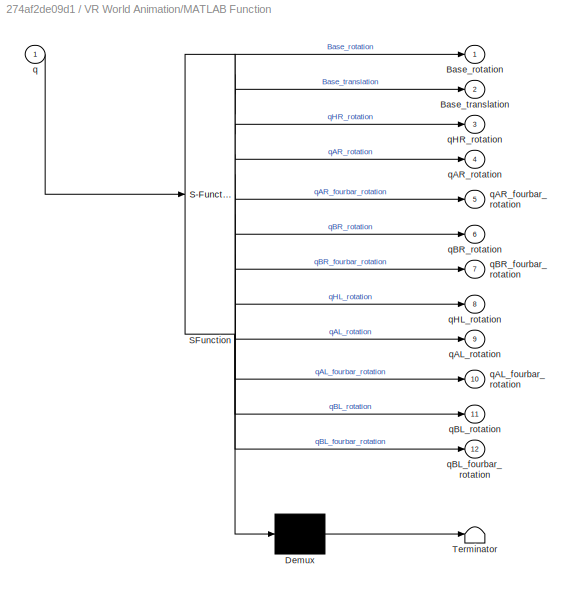
BLOCK [SubSystem] VR World Animation/MATLAB Function
  ErrorFcn = Stateflow.Translate.translate
  PermitHierarchicalResolution = ExplicitOnly
  Ports = [1, 12]
  RequestExecContextInheritance = off
  SFBlockType = MATLAB Function
  TreatAsAtomicUnit = on
  Variant = off
BLOCK [Demux] VR World Animation/MATLAB Function/ Demux 
  Outputs = 1
  Ports = [1, 1]
BLOCK [S-Function] VR World Animation/MATLAB Function/ SFunction 
  EnableBusSupport = on
  FunctionName = sf_sfun
  PortCounts = [1 13]
  Ports = [1, 13]
  SFunctionDeploymentMode = off
  Tag = Stateflow S-Function Controller_Sim 19
BLOCK [Terminator] VR World Animation/MATLAB Function/ Terminator 
BLOCK [Outport] VR World Animation/MATLAB Function/Base_rotation
  IconDisplay = Port number
BLOCK [Outport] VR World Animation/MATLAB Function/Base_translation
  IconDisplay = Port number
  Port = 2
BLOCK [Inport] VR World Animation/MATLAB Function/q
  IconDisplay = Port number
BLOCK [Outport] VR World Animation/MATLAB Function/qAL_fourbar_rotation
  IconDisplay = Port number
  Port = 10
BLOCK [Outport] VR World Animation/MATLAB Function/qAL_rotation
  IconDisplay = Port number
  Port = 9
BLOCK [Outport] VR World Animation/MATLAB Function/qAR_fourbar_rotation
  IconDisplay = Port number
  Port = 5
BLOCK [Outport] VR World Animation/MATLAB Function/qAR_rotation
  IconDisplay = Port number
  Port = 4
BLOCK [Outport] VR World Animation/MATLAB Function/qBL_fourbar_rotation
  IconDisplay = Port number
  Port = 12
BLOCK [Outport] VR World Animation/MATLAB Function/qBL_rotation
  IconDisplay = Port number
  Port = 11
BLOCK [Outport] VR World Animation/MATLAB Function/qBR_fourbar_rotation
  IconDisplay = Port number
  Port = 7
BLOCK [Outport] VR World Animation/MATLAB Function/qBR_rotation
  IconDisplay = Port number
  Port = 6
BLOCK [Outport] VR World Animation/MATLAB Function/qHL_rotation
  IconDisplay = Port number
  Port = 8
BLOCK [Outport] VR World Animation/MATLAB Function/qHR_rotation
  IconDisplay = Port number
  Port = 3
BLOCK [RateTransition] VR World Animation/Rate Transition
BLOCK [Reference] VR World Animation/VR Sink  REF=vrlib/VR Sink
  InstantiateOnLoad = on
  Ports = [12]
  SourceBlock = vrlib/VR Sink
  SourceType = Virtual Reality Sink
BLOCK [Inport] VR World Animation/q
  IconDisplay = Port number
BLOCK [DataTypeConversion] double
  OutDataTypeStr = double
  RndMeth = Floor
  SaturateOnIntegerOverflow = off
ANNOTATION Plant/DennisHarmonicDriveStictionModel/LuGre_Fric_MATLAB: The input unit is rad-based. In the MATLAB function, it will convert to deg-based value
ANNOTATION Plant/DennisHarmonicDriveStictionModel/LuGre_Fric_MATLAB1: The input unit is rad-based. In the MATLAB function, it will convert to deg-based value
LINE Animator/q:1 -> Animator/MATLAB Function:1
LINE Animator/torso_com_offset1:1 -> Animator/MATLAB Function:2
LINE Animator/torso_com_offset:1 -> Animator/MATLAB Function:3
NET Clock:1 -> Controller:1, ROS: Publish Joint States:2, To Workspace7:1
NET Controller:1 -> Plant:1, To Workspace9:1
LINE Controller:2 -> double:1
LINE Controller:3 -> To Workspace5:1
LINE Gain:1 -> Scope1:1
LINE Plant/CheckTerminationCond/MATLAB Function:1 -> Plant/CheckTerminationCond/term_signal:1
LINE Plant/CheckTerminationCond/torso_com_offset1:1 -> Plant/CheckTerminationCond/MATLAB Function:2
LINE Plant/CheckTerminationCond/torso_com_offset:1 -> Plant/CheckTerminationCond/MATLAB Function:3
LINE Plant/CheckTerminationCond/x_e:1 -> Plant/CheckTerminationCond/MATLAB Function:1
LINE Plant/CheckTerminationCond:1 -> Plant/Stop Simulation:1
LINE Plant/Demux:1 -> Plant/To Workspace:1
NET Plant/Demux:2 -> Plant/DennisHarmonicDriveStictionModel:1, Plant/To Workspace1:1
LINE Plant/DennisHarmonicDriveStictionModel/Constant1:1 -> Plant/DennisHarmonicDriveStictionModel/LuGre_Fric_MATLAB:2
LINE Plant/DennisHarmonicDriveStictionModel/Constant2:1 -> Plant/DennisHarmonicDriveStictionModel/LuGre_Fric_MATLAB1:2
LINE Plant/DennisHarmonicDriveStictionModel/Constant3:1 -> Plant/DennisHarmonicDriveStictionModel/LuGre_Fric_MATLAB2:2
LINE Plant/DennisHarmonicDriveStictionModel/Constant4:1 -> Plant/DennisHarmonicDriveStictionModel/LuGre_Fric_MATLAB3:2
LINE Plant/DennisHarmonicDriveStictionModel/Demux:1 -> Plant/DennisHarmonicDriveStictionModel/LuGre_Fric_MATLAB:1
LINE Plant/DennisHarmonicDriveStictionModel/Demux:2 -> Plant/DennisHarmonicDriveStictionModel/LuGre_Fric_MATLAB1:1
LINE Plant/DennisHarmonicDriveStictionModel/Demux:3 -> Plant/DennisHarmonicDriveStictionModel/LuGre_Fric_MATLAB2:1
LINE Plant/DennisHarmonicDriveStictionModel/Demux:4 -> Plant/DennisHarmonicDriveStictionModel/LuGre_Fric_MATLAB3:1
LINE Plant/DennisHarmonicDriveStictionModel/EnableStictionModel:1 -> Plant/DennisHarmonicDriveStictionModel/Fstiction:1
LINE Plant/DennisHarmonicDriveStictionModel/Gain1:1 -> Plant/DennisHarmonicDriveStictionModel/EnableStictionModel:1
LINE Plant/DennisHarmonicDriveStictionModel/LuGre_Fric_MATLAB1:1 -> Plant/DennisHarmonicDriveStictionModel/Terminator1:1
LINE Plant/DennisHarmonicDriveStictionModel/LuGre_Fric_MATLAB1:2 -> Plant/DennisHarmonicDriveStictionModel/Mux:2
LINE Plant/DennisHarmonicDriveStictionModel/LuGre_Fric_MATLAB2:1 -> Plant/DennisHarmonicDriveStictionModel/Terminator2:1
LINE Plant/DennisHarmonicDriveStictionModel/LuGre_Fric_MATLAB2:2 -> Plant/DennisHarmonicDriveStictionModel/Mux:3
LINE Plant/DennisHarmonicDriveStictionModel/LuGre_Fric_MATLAB3:1 -> Plant/DennisHarmonicDriveStictionModel/Terminator3:1
LINE Plant/DennisHarmonicDriveStictionModel/LuGre_Fric_MATLAB3:2 -> Plant/DennisHarmonicDriveStictionModel/Mux:4
LINE Plant/DennisHarmonicDriveStictionModel/LuGre_Fric_MATLAB:1 -> Plant/DennisHarmonicDriveStictionModel/Terminator:1
LINE Plant/DennisHarmonicDriveStictionModel/LuGre_Fric_MATLAB:2 -> Plant/DennisHarmonicDriveStictionModel/Mux:1
LINE Plant/DennisHarmonicDriveStictionModel/Mux:1 -> Plant/DennisHarmonicDriveStictionModel/Gain1:1
LINE Plant/DennisHarmonicDriveStictionModel/Selector:1 -> Plant/DennisHarmonicDriveStictionModel/Demux:1
LINE Plant/DennisHarmonicDriveStictionModel/dq:1 -> Plant/DennisHarmonicDriveStictionModel/Selector:1
NET Plant/DennisHarmonicDriveStictionModel:1 -> Plant/Robot:3, Plant/To Workspace5:1
NET Plant/GroundModel/FootPoints:1 -> Plant/GroundModel/For Each Subsystem1:5, Plant/GroundModel/For Each Subsystem:5, Plant/GroundModel/MATLAB Function:2
NET Plant/GroundModel/For Each Subsystem/2-D Lookup Table:1 -> Plant/GroundModel/For Each Subsystem/Subsystem:1, Plant/GroundModel/For Each Subsystem/Sum:1
LINE Plant/GroundModel/For Each Subsystem/Demux1:1 -> Plant/GroundModel/For Each Subsystem/2-D Lookup Table:2
LINE Plant/GroundModel/For Each Subsystem/Demux1:2 -> Plant/GroundModel/For Each Subsystem/2-D Lookup Table:1
LINE Plant/GroundModel/For Each Subsystem/Demux1:3 -> Plant/GroundModel/For Each Subsystem/Sum:2
LINE Plant/GroundModel/For Each Subsystem/FootPoints:1 -> Plant/GroundModel/For Each Subsystem/Subsystem:6
LINE Plant/GroundModel/For Each Subsystem/J4:1 -> Plant/GroundModel/For Each Subsystem/Subsystem:4
LINE Plant/GroundModel/For Each Subsystem/JRCol:1 -> Plant/GroundModel/For Each Subsystem/Subsystem:5
LINE Plant/GroundModel/For Each Subsystem/Subsystem/FootPoints:1 -> Plant/GroundModel/For Each Subsystem/Subsystem/MATLAB Function:6
LINE Plant/GroundModel/For Each Subsystem/Subsystem/GroundHeight:1 -> Plant/GroundModel/For Each Subsystem/Subsystem/MATLAB Function:1
LINE Plant/GroundModel/For Each Subsystem/Subsystem/GroundModelParams:1 -> Plant/GroundModel/For Each Subsystem/Subsystem/MATLAB Function:7
LINE Plant/GroundModel/For Each Subsystem/Subsystem/Integrator:1 -> Plant/GroundModel/For Each Subsystem/Subsystem/MATLAB Function:8
LINE Plant/GroundModel/For Each Subsystem/Subsystem/J4:1 -> Plant/GroundModel/For Each Subsystem/Subsystem/MATLAB Function:4
LINE Plant/GroundModel/For Each Subsystem/Subsystem/JRCol:1 -> Plant/GroundModel/For Each Subsystem/Subsystem/MATLAB Function:5
LINE Plant/GroundModel/For Each Subsystem/Subsystem/MATLAB Function:1 -> Plant/GroundModel/For Each Subsystem/Subsystem/GRF:1
LINE Plant/GroundModel/For Each Subsystem/Subsystem/MATLAB Function:2 -> Plant/GroundModel/For Each Subsystem/Subsystem/tau:1
LINE Plant/GroundModel/For Each Subsystem/Subsystem/MATLAB Function:3 -> Plant/GroundModel/For Each Subsystem/Subsystem/Integrator:1
LINE Plant/GroundModel/For Each Subsystem/Subsystem/pF:1 -> Plant/GroundModel/For Each Subsystem/Subsystem/MATLAB Function:2
LINE Plant/GroundModel/For Each Subsystem/Subsystem/vF:1 -> Plant/GroundModel/For Each Subsystem/Subsystem/MATLAB Function:3
LINE Plant/GroundModel/For Each Subsystem/Subsystem:1 -> Plant/GroundModel/For Each Subsystem/GRF:1
LINE Plant/GroundModel/For Each Subsystem/Subsystem:2 -> Plant/GroundModel/For Each Subsystem/tau:1
LINE Plant/GroundModel/For Each Subsystem/Sum:1 -> Plant/GroundModel/For Each Subsystem/Subsystem:enable
NET Plant/GroundModel/For Each Subsystem/pF:1 -> Plant/GroundModel/For Each Subsystem/Demux1:1, Plant/GroundModel/For Each Subsystem/Subsystem:2
LINE Plant/GroundModel/For Each Subsystem/vF:1 -> Plant/GroundModel/For Each Subsystem/Subsystem:3
NET Plant/GroundModel/For Each Subsystem1/2-D Lookup Table:1 -> Plant/GroundModel/For Each Subsystem1/Subsystem:1, Plant/GroundModel/For Each Subsystem1/Sum:1
LINE Plant/GroundModel/For Each Subsystem1/Demux1:1 -> Plant/GroundModel/For Each Subsystem1/2-D Lookup Table:2
LINE Plant/GroundModel/For Each Subsystem1/Demux1:2 -> Plant/GroundModel/For Each Subsystem1/2-D Lookup Table:1
LINE Plant/GroundModel/For Each Subsystem1/Demux1:3 -> Plant/GroundModel/For Each Subsystem1/Sum:2
LINE Plant/GroundModel/For Each Subsystem1/FootPoints:1 -> Plant/GroundModel/For Each Subsystem1/Subsystem:6
LINE Plant/GroundModel/For Each Subsystem1/J4:1 -> Plant/GroundModel/For Each Subsystem1/Subsystem:4
LINE Plant/GroundModel/For Each Subsystem1/JRCol:1 -> Plant/GroundModel/For Each Subsystem1/Subsystem:5
LINE Plant/GroundModel/For Each Subsystem1/Subsystem/FootPoints:1 -> Plant/GroundModel/For Each Subsystem1/Subsystem/MATLAB Function:6
LINE Plant/GroundModel/For Each Subsystem1/Subsystem/GroundHeight:1 -> Plant/GroundModel/For Each Subsystem1/Subsystem/MATLAB Function:1
LINE Plant/GroundModel/For Each Subsystem1/Subsystem/GroundModelParams:1 -> Plant/GroundModel/For Each Subsystem1/Subsystem/MATLAB Function:7
LINE Plant/GroundModel/For Each Subsystem1/Subsystem/Integrator:1 -> Plant/GroundModel/For Each Subsystem1/Subsystem/MATLAB Function:8
LINE Plant/GroundModel/For Each Subsystem1/Subsystem/J4:1 -> Plant/GroundModel/For Each Subsystem1/Subsystem/MATLAB Function:4
LINE Plant/GroundModel/For Each Subsystem1/Subsystem/JRCol:1 -> Plant/GroundModel/For Each Subsystem1/Subsystem/MATLAB Function:5
LINE Plant/GroundModel/For Each Subsystem1/Subsystem/MATLAB Function:1 -> Plant/GroundModel/For Each Subsystem1/Subsystem/GRF:1
LINE Plant/GroundModel/For Each Subsystem1/Subsystem/MATLAB Function:2 -> Plant/GroundModel/For Each Subsystem1/Subsystem/tau:1
LINE Plant/GroundModel/For Each Subsystem1/Subsystem/MATLAB Function:3 -> Plant/GroundModel/For Each Subsystem1/Subsystem/Integrator:1
LINE Plant/GroundModel/For Each Subsystem1/Subsystem/pF:1 -> Plant/GroundModel/For Each Subsystem1/Subsystem/MATLAB Function:2
LINE Plant/GroundModel/For Each Subsystem1/Subsystem/vF:1 -> Plant/GroundModel/For Each Subsystem1/Subsystem/MATLAB Function:3
LINE Plant/GroundModel/For Each Subsystem1/Subsystem:1 -> Plant/GroundModel/For Each Subsystem1/GRF:1
LINE Plant/GroundModel/For Each Subsystem1/Subsystem:2 -> Plant/GroundModel/For Each Subsystem1/tau:1
LINE Plant/GroundModel/For Each Subsystem1/Sum:1 -> Plant/GroundModel/For Each Subsystem1/Subsystem:enable
NET Plant/GroundModel/For Each Subsystem1/pF:1 -> Plant/GroundModel/For Each Subsystem1/Demux1:1, Plant/GroundModel/For Each Subsystem1/Subsystem:2
LINE Plant/GroundModel/For Each Subsystem1/vF:1 -> Plant/GroundModel/For Each Subsystem1/Subsystem:3
LINE Plant/GroundModel/For Each Subsystem1:1 -> Plant/GroundModel/Matrix Concatenate:2
LINE Plant/GroundModel/For Each Subsystem1:2 -> Plant/GroundModel/Sum of Elements1:1
LINE Plant/GroundModel/For Each Subsystem:1 -> Plant/GroundModel/Matrix Concatenate:1
LINE Plant/GroundModel/For Each Subsystem:2 -> Plant/GroundModel/Sum of Elements:1
NET Plant/GroundModel/MATLAB Function:1 -> Plant/GroundModel/For Each Subsystem:1, Plant/GroundModel/pR:1
LINE Plant/GroundModel/MATLAB Function:2 -> Plant/GroundModel/For Each Subsystem:2
LINE Plant/GroundModel/MATLAB Function:3 -> Plant/GroundModel/For Each Subsystem:3
LINE Plant/GroundModel/MATLAB Function:4 -> Plant/GroundModel/For Each Subsystem:4
NET Plant/GroundModel/MATLAB Function:5 -> Plant/GroundModel/For Each Subsystem1:1, Plant/GroundModel/pL:1
LINE Plant/GroundModel/MATLAB Function:6 -> Plant/GroundModel/For Each Subsystem1:2
LINE Plant/GroundModel/MATLAB Function:7 -> Plant/GroundModel/For Each Subsystem1:3
LINE Plant/GroundModel/MATLAB Function:8 -> Plant/GroundModel/For Each Subsystem1:4
LINE Plant/GroundModel/Matrix Concatenate:1 -> Plant/GroundModel/Reshape:1
LINE Plant/GroundModel/Reshape1:1 -> Plant/GroundModel/FGround:1
LINE Plant/GroundModel/Reshape:1 -> Plant/GroundModel/GRF:1
LINE Plant/GroundModel/Sum of Elements1:1 -> Plant/GroundModel/Sum:2
LINE Plant/GroundModel/Sum of Elements:1 -> Plant/GroundModel/Sum:1
LINE Plant/GroundModel/Sum:1 -> Plant/GroundModel/Reshape1:1
LINE Plant/GroundModel/torso_com_offset1:1 -> Plant/GroundModel/MATLAB Function:3
LINE Plant/GroundModel/torso_com_offset:1 -> Plant/GroundModel/MATLAB Function:4
LINE Plant/GroundModel/x_e:1 -> Plant/GroundModel/MATLAB Function:1
LINE Plant/GroundModel:1 -> Plant/To Workspace4:1
LINE Plant/GroundModel:2 -> Plant/Robot:2
LINE Plant/GroundModel:3 -> Plant/To Workspace2:1
LINE Plant/GroundModel:4 -> Plant/To Workspace3:1
NET Plant/Robot/Clock:1 -> Plant/Robot/Dynamics:10, Plant/Robot/MATLAB Function1:1
LINE Plant/Robot/Constant:1 -> Plant/Robot/Integrator:2
LINE Plant/Robot/Demux1:1 -> Plant/Robot/Terminator:1
NET Plant/Robot/Demux1:2 -> Plant/Robot/To Workspace:1, Plant/Robot/ddq:1
NET Plant/Robot/Demux:1 -> Plant/Robot/MATLAB Function1:2, Plant/Robot/MATLAB Function:1
NET Plant/Robot/Demux:2 -> Plant/Robot/MATLAB Function1:3, Plant/Robot/MATLAB Function:2
NET Plant/Robot/Dynamics:1 -> Plant/Robot/Demux1:1, Plant/Robot/Integrator:1
LINE Plant/Robot/FGround:1 -> Plant/Robot/Dynamics:7
LINE Plant/Robot/FStiction:1 -> Plant/Robot/Dynamics:8
NET Plant/Robot/Integrator:1 -> Plant/Robot/Demux:1, Plant/Robot/Dynamics:1, Plant/Robot/x_e:1
LINE Plant/Robot/MATLAB Function1:1 -> Plant/Robot/Dynamics:9
LINE Plant/Robot/MATLAB Function:1 -> Plant/Robot/Dynamics:3
LINE Plant/Robot/MATLAB Function:2 -> Plant/Robot/Dynamics:4
LINE Plant/Robot/MATLAB Function:3 -> Plant/Robot/Dynamics:5
LINE Plant/Robot/MATLAB Function:4 -> Plant/Robot/Dynamics:6
LINE Plant/Robot/torso_com_offset1:1 -> Plant/Robot/MATLAB Function:3
LINE Plant/Robot/torso_com_offset:1 -> Plant/Robot/MATLAB Function:4
LINE Plant/Robot/u:1 -> Plant/Robot/Dynamics:2
NET Plant/Robot:1 -> Plant/CheckTerminationCond:1, Plant/Demux:1, Plant/GroundModel:1, Plant/extract:1
LINE Plant/Robot:2 -> Plant/ddq:1
LINE Plant/extract:1 -> Plant/q:1
LINE Plant/extract:2 -> Plant/dq:1
LINE Plant/u:1 -> Plant/Robot:1
NET Plant:1 -> Animator:1, ROS: Publish Joint States:1, Selector4:1, To Workspace2:1, VR World Animation:1
NET Plant:2 -> Selector5:1, To Workspace3:1
LINE Plant:3 -> To Workspace4:1
LINE Pulse Generator1:1 -> ROS: Publish Joint States:trigger
LINE Pulse Generator:1 -> Animator:trigger
LINE ROS: Publish Joint States/Blank Message1:1 -> ROS: Publish Joint States/MATLAB Function - Assign:1
LINE ROS: Publish Joint States/Constant7:1 -> ROS: Publish Joint States/MATLAB Function - Assign:4
LINE ROS: Publish Joint States/MATLAB Function - Assign:1 -> ROS: Publish Joint States/Publish:1
LINE ROS: Publish Joint States/q:1 -> ROS: Publish Joint States/MATLAB Function - Assign:3
LINE ROS: Publish Joint States/t:1 -> ROS: Publish Joint States/MATLAB Function - Assign:2
LINE Random Number:1 -> Rate Transition:1
LINE Rate Transition:1 -> Gain:1
LINE Selector4:1 -> Controller:2
LINE Selector5:1 -> Controller:3
LINE VR World Animation/MATLAB Function:1 -> VR World Animation/VR Sink:1
LINE VR World Animation/MATLAB Function:10 -> VR World Animation/VR Sink:10
LINE VR World Animation/MATLAB Function:11 -> VR World Animation/VR Sink:11
LINE VR World Animation/MATLAB Function:12 -> VR World Animation/VR Sink:12
LINE VR World Animation/MATLAB Function:2 -> VR World Animation/VR Sink:2
LINE VR World Animation/MATLAB Function:3 -> VR World Animation/VR Sink:3
LINE VR World Animation/MATLAB Function:4 -> VR World Animation/VR Sink:4
LINE VR World Animation/MATLAB Function:5 -> VR World Animation/VR Sink:5
LINE VR World Animation/MATLAB Function:6 -> VR World Animation/VR Sink:6
LINE VR World Animation/MATLAB Function:7 -> VR World Animation/VR Sink:7
LINE VR World Animation/MATLAB Function:8 -> VR World Animation/VR Sink:8
LINE VR World Animation/MATLAB Function:9 -> VR World Animation/VR Sink:9
LINE VR World Animation/Rate Transition:1 -> VR World Animation/MATLAB Function:1
LINE VR World Animation/q:1 -> VR World Animation/Rate Transition:1
LINE double:1 -> Stop Simulation:1
note: NET lines group one-source signal fan-out (src -> all destinations, sorted); 1:1 wires keep LINE
CHART Plant/GroundModel/For Each
Subsystem1/Subsystem/MATLAB Function states=1 transitions=1
  STATE_LABEL 'eML_blk_kernel()'
  STATE_LABEL "SCRIPT:\nfunction [GRF, tau, dd] = computeLuGreHertzian(GroundHeight, pF, vF, J4, JRCol, FootPoints, GroundModel, d)\n    %#codegen\n    \n    [F, dd] = LuGreHertzian(pF(3), vF(3,:), d, vF(1:2,:), GroundModel,GroundHeight);\n    GRF = F(:);\n    \n    J   = J4 + FootPoints(1)*JRCol(1:3,:) + FootPoints(2)*JRCol(4:6,:) + FootPoints(3)*JRCol(7:9,:);\n    tau = J.'*GRF;\nend\n"
CHART Plant/Robot/Dynamics states=1 transitions=1
  STATE_LABEL 'eML_blk_kernel()'
  STATE_LABEL 'SCRIPT:\nfunction x_dot  = ATRIAS3D_Flight(x, u, D, Cdq, G, B, FGround, Fstiction, spring_k, spring_zeta, ExternalHipForce,Ttime)\n%#codegen\n\nq  = x(1:16);\ndq = x(17:32);\n\n% Lagrange model\n%[D,Cdq,G,B,J_yaw,dJ_yaw] = ATRIAS3D_Lagrange_Hip(q,dq);\n\n%Calculate spring and damper forces\n[K_spring, K_damping] = ATRIAS3D_Spring_Constants(spring_k, spring_zeta);\nFSpring = K_spring * q + K_damping * dq; \n\n% ...<+203ch>'
CHART Plant/GroundModel/For Each
Subsystem/Subsystem/MATLAB Function states=1 transitions=1
  STATE_LABEL 'eML_blk_kernel()'
  STATE_LABEL "SCRIPT:\nfunction [GRF, tau, dd] = computeLuGreHertzian(GroundHeight, pF, vF, J4, JRCol, FootPoints, GroundModel, d)\n    %#codegen\n    \n    [F, dd] = LuGreHertzian(pF(3), vF(3,:), d, vF(1:2,:), GroundModel,GroundHeight);\n    GRF = F(:);\n    \n    J   = J4 + FootPoints(1)*JRCol(1:3,:) + FootPoints(2)*JRCol(4:6,:) + FootPoints(3)*JRCol(7:9,:);\n    tau = J.'*GRF;\nend\n"
CHART Plant/extract states=1 transitions=1
  STATE_LABEL 'eML_blk_kernel()'
  STATE_LABEL 'SCRIPT:\nfunction [q,dq] = extract(x)\n%#codegen\nq = x(1:16,1);\ndq = x(17:32,1);\n'
CHART Plant/Robot/MATLAB Function states=1 transitions=1
  STATE_LABEL 'eML_blk_kernel()'
  STATE_LABEL 'SCRIPT:\nfunction [D, Cdq, G, B] = Compute_Lagrange_Model(q, dq, leg_length, torso_com_offset)\n%#codegen\n\n% Call functions generated from symbolic model\nextra_vars = [leg_length; torso_com_offset];\nD = OriginalLeg_Springs_VariableLeg_COMoffset.ATRIAS3D_D_Hip(q,extra_vars);\nCdq = OriginalLeg_Springs_VariableLeg_COMoffset.ATRIAS3D_Cdq_Hip(q,dq,extra_vars);\nG = OriginalLeg_Springs_VariableLeg_COMoffse...<+97ch>'
CHART Plant/Robot/MATLAB Function1 states=1 transitions=1
  STATE_LABEL 'eML_blk_kernel()'
  STATE_LABEL 'SCRIPT:\nfunction F  = ExternalForces(t, q, dq)\n    F = CompliantSimulator.ExternalForces(t, q, dq);\nend\n'
CHART Animator/MATLAB Function states=1 transitions=1
  STATE_LABEL 'eML_blk_kernel()'
  STATE_LABEL "SCRIPT:\nfunction Animation(q, leg_length, torso_com_offset)\n%#codegen \npersistent f p1HR p2HR p31R p42R pHR0TR p1HL p2HL p31L p42L pHR0TL torso ax\nleg1Color = 'r'; \nleg2Color = 'b';\ntorsoColor = 'k';\ngroundColor = 'g';\n        \n% Get Positions\n[pcm, p0, p0T, pHR, p1R, p2R, p3R, p4R, pHL, p1L, p2L, p3L, p4L] =  OriginalLeg_Springs_VariableLeg_COMoffset.ATRIAS3D_Positions_Hip(q,[leg_length;torso_com...<+2445ch>"
CHART Plant/GroundModel/MATLAB Function states=1 transitions=1
  STATE_LABEL 'eML_blk_kernel()'
  STATE_LABEL 'SCRIPT:\nfunction [pR, vR, J4R, JR1Col, pL, vL, J4L, JR5Col] = getFootHeightAndVelocity(x, FootPoints,  leg_length, torso_com_offset)\n    %#codegen\n    [pR, vR, J4R, JR1Col, pL, vL, J4L, JR5Col] = FootHeightAndVelocity(x, FootPoints, leg_length, torso_com_offset);\nend\n'
CHART Plant/CheckTerminationCond/MATLAB Function states=1 transitions=1
  STATE_LABEL 'eML_blk_kernel()'
  STATE_LABEL 'SCRIPT:\nfunction terminate_signal  =  CheckTerminationConditions(x_e,leg_length,torso_com_offset)\n%#codegen\n%\nq  = x_e(1:16);\ndq = x_e(17:end);\n\n%[pcm p0 p0T pHR p1R p2R p3R p4R pHL p1L p2L p3L p4L] = ATRIAS3D_Primary_PointsHip(q);\n[pcm, p0, p0T, pHR, p1R, p2R, p3R, p4R, pHL, p1L, p2L, p3L, p4L] = OriginalLeg_Springs_VariableLeg_COMoffset.ATRIAS3D_Positions_Hip(q,[leg_length;torso_com_offset]);\n\np...<+189ch>'
CHART Plant/DennisHarmonicDriveStictionModel/LuGre_Fric_MATLAB/MATLAB Function states=1 transitions=1
  STATE_LABEL 'eML_blk_kernel()'
  STATE_LABEL 'SCRIPT:\nfunction [Fric,dz] = LuGre_Fric_MATLAB(vel,p,z)\n%#codegen\n\n% J = p(1);\nalpha0 = p(2);\nalpha0v2 = p(3);\nalpha1 = p(4);\nalpha1v2 = p(5);\nalpha2 = p(6);\nalpha2v2 = p(7);\nalpha3 = p(8); \nalpha3v2 = p(9);\nv0 = p(10);\nv0v2 = p(11);\nsigma0 = p(12);\nsigma1 = p(13);\nfConst = p(14);\n\nx2 = vel*180/pi;\ng = (alpha0+alpha1*exp(-(x2/v0).^2))*(x2>=0)+(alpha0v2+alpha1v2*exp(-(x2/v0v2).^2))*(x2<0);\ndz = x2-...<+151ch>'
CHART Plant/DennisHarmonicDriveStictionModel/LuGre_Fric_MATLAB1/MATLAB Function states=1 transitions=1
  STATE_LABEL 'eML_blk_kernel()'
  STATE_LABEL 'SCRIPT:\nfunction [Fric,dz] = LuGre_Fric_MATLAB(vel,p,z)\n%#codegen\n\n% J = p(1);\nalpha0 = p(2);\nalpha0v2 = p(3);\nalpha1 = p(4);\nalpha1v2 = p(5);\nalpha2 = p(6);\nalpha2v2 = p(7);\nalpha3 = p(8); \nalpha3v2 = p(9);\nv0 = p(10);\nv0v2 = p(11);\nsigma0 = p(12);\nsigma1 = p(13);\nfConst = p(14);\n\nx2 = vel*180/pi;\ng = (alpha0+alpha1*exp(-(x2/v0).^2))*(x2>=0)+(alpha0v2+alpha1v2*exp(-(x2/v0v2).^2))*(x2<0);\ndz = x2-...<+151ch>'
CHART ROS: Publish Joint States/MATLAB Function - Assign states=1 transitions=1
  STATE_LABEL 'eML_blk_kernel()'
  STATE_LABEL 'SCRIPT:\nfunction msg = assign_JointTrajectory(blankMessage, t, q, Ts)\n%#codegen\n\n% To set datatype of MSG output:\n%  1. Create buses for this model: robotics.ros.createSimulinkBus(gcs)\n%  1. Click "Edit Data" in  Toolstrip to open "Ports and Data Manager"\n%  2. Select MSG and set datatype to "Bus: SL_Bus_<modelname>_<messageType>"\n% See: \n% http://www.mathworks.com/help/simulink/ug/create-structur...<+1592ch>'
CHART VR World Animation/MATLAB Function states=1 transitions=1
  STATE_LABEL 'eML_blk_kernel()'
  STATE_LABEL 'SCRIPT:\nfunction [Base_rotation, Base_translation, qHR_rotation, ...\n    qAR_rotation, qAR_fourbar_rotation, qBR_rotation, qBR_fourbar_rotation, ...\n    qHL_rotation, qAL_rotation, qAL_fourbar_rotation, qBL_rotation, ...\n    qBL_fourbar_rotation] = DeconstructConfigurationForAnimation(q)\n\n    R_atrias2vrml = [1,0,0; 0,0,1; 0,-1,0];\n%     Rz = @(th) [cos(th), -sin(th), 0; sin(th), cos(th), 0; 0,0,1...<+1303ch>'
